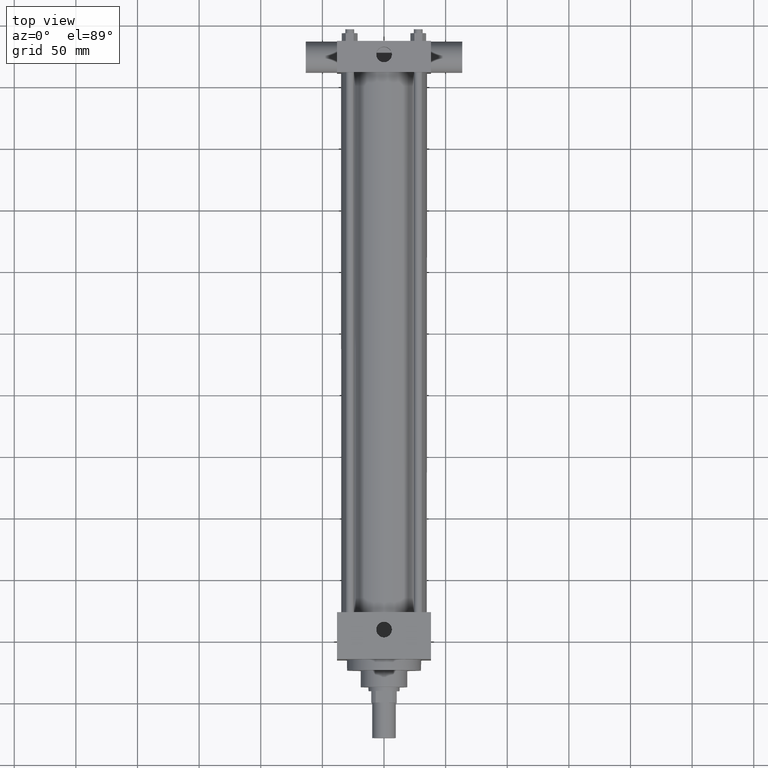
[diagram: clean part render]
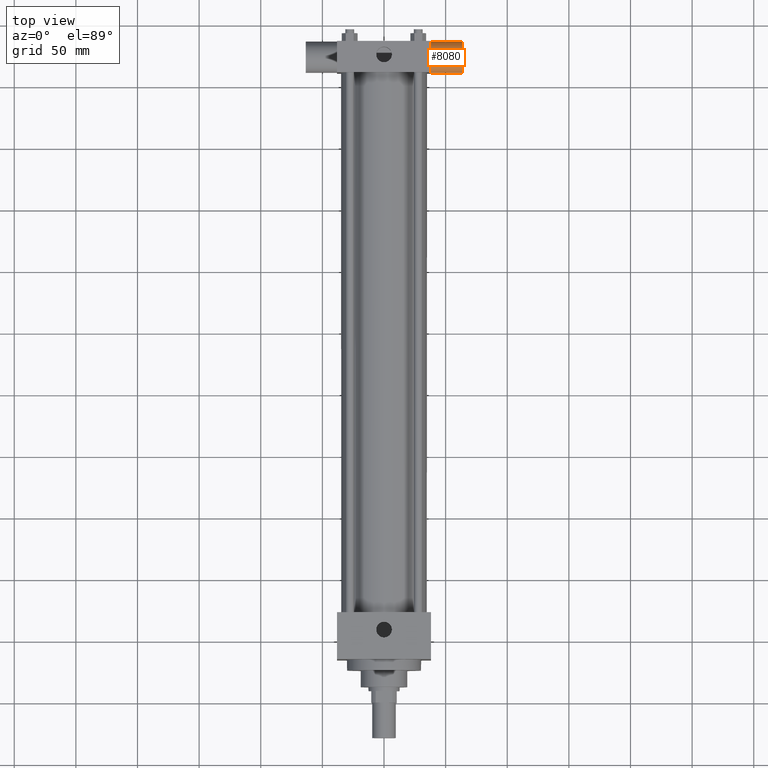
[diagram: same view with one face highlighted and labeled with its STEP entity id]
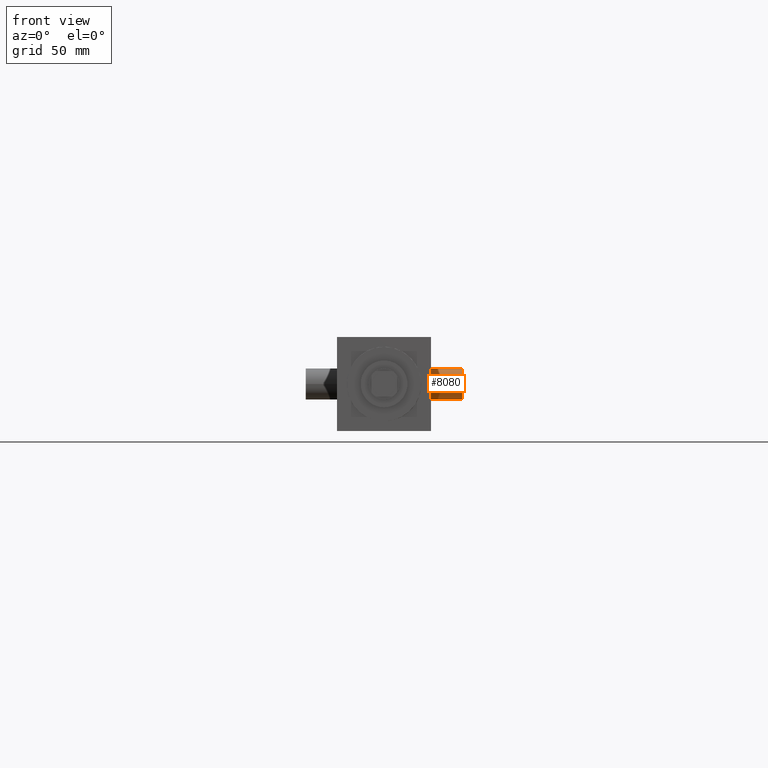
[diagram: same view with one face highlighted and labeled with its STEP entity id]
A machine part, top view. The second image highlights one B-rep face of the part: STEP entity #8080.
A second angle (front view) of the same face is appended — the face is thin or edge-on in the first view.
In plain terms, the highlighted cylindrical surface (bore or boss wall) has radius 12.6746 mm, axis along (1, 0, 0).
Its self-contained STEP definition (entity closure, byte-faithful):
#2831=EDGE_CURVE('',#2837,#2837,#2832,.T.);
#2832=CIRCLE('',#2833,1.267460000E+001);
#2833=AXIS2_PLACEMENT_3D('',#2834,#2835,#2836);
#2834=CARTESIAN_POINT('',(3.810000000E+001,5.238750000E+002,0.000000000E+000));
#2835=DIRECTION('',(-1.0E+000,0.0E+000,0.0E+000));
#2836=DIRECTION('',(0.0E+000,1.0E+000,0.0E+000));
#2837=VERTEX_POINT('',#2838);
#2838=CARTESIAN_POINT('',(3.810000000E+001,5.365496000E+002,0.000000000E+000));
#2844=FACE_OUTER_BOUND('',#2846,.T.);
#2845=FACE_BOUND('',#2847,.T.);
#2846=EDGE_LOOP('',(#2848));
#2847=EDGE_LOOP('',(#2857));
#2848=ORIENTED_EDGE('',*,*,#2849,.T.);
#2849=EDGE_CURVE('',#2855,#2855,#2850,.T.);
#2850=CIRCLE('',#2851,1.267460000E+001);
#2851=AXIS2_PLACEMENT_3D('',#2852,#2853,#2854);
#2852=CARTESIAN_POINT('',(6.350000000E+001,5.238750000E+002,0.000000000E+000));
#2853=DIRECTION('',(-1.0E+000,0.0E+000,0.0E+000));
#2854=DIRECTION('',(0.0E+000,1.0E+000,0.0E+000));
#2855=VERTEX_POINT('',#2856);
#2856=CARTESIAN_POINT('',(6.350000000E+001,5.365496000E+002,0.000000000E+000));
#2857=ORIENTED_EDGE('',*,*,#2831,.F.);
#2858=CYLINDRICAL_SURFACE('',#2859,1.267460000E+001);
#2859=AXIS2_PLACEMENT_3D('',#2860,#2861,#2862);
#2860=CARTESIAN_POINT('',(6.350000000E+001,5.238750000E+002,0.000000000E+000));
#2861=DIRECTION('',(1.0E+000,0.0E+000,0.0E+000));
#2862=DIRECTION('',(0.0E+000,0.0E+000,-1.0E+000));
#8080=ADVANCED_FACE('',(#2844,#2845),#2858,.F.);